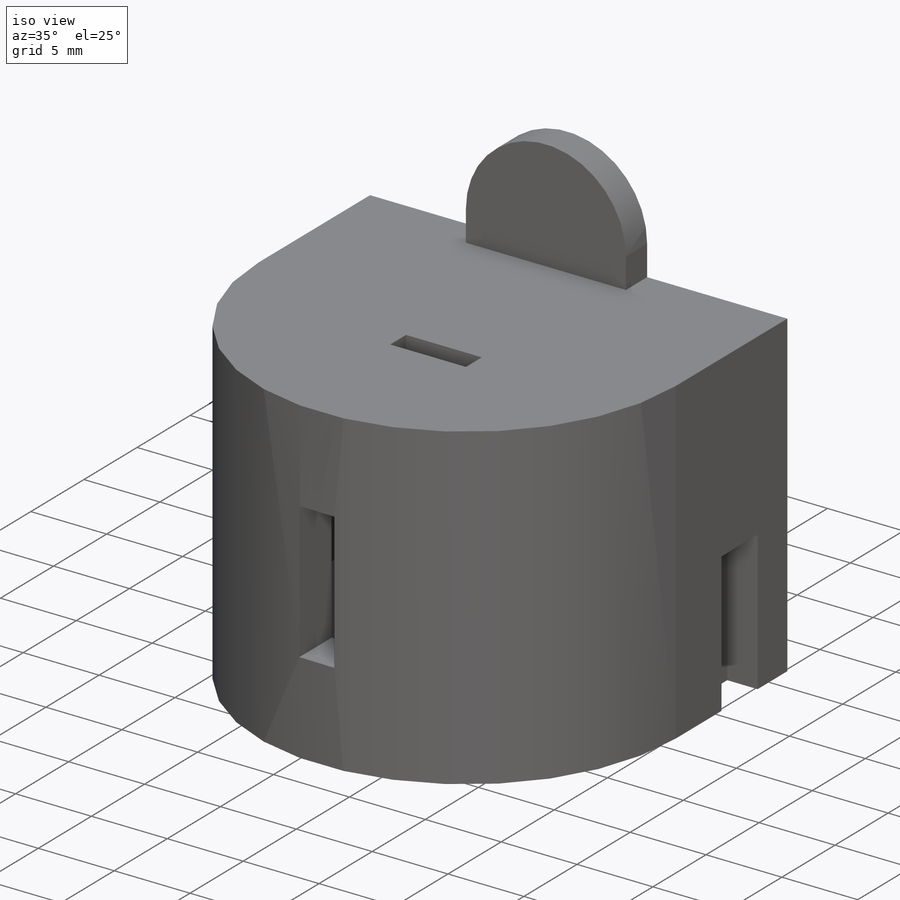
[diagram: iso view]
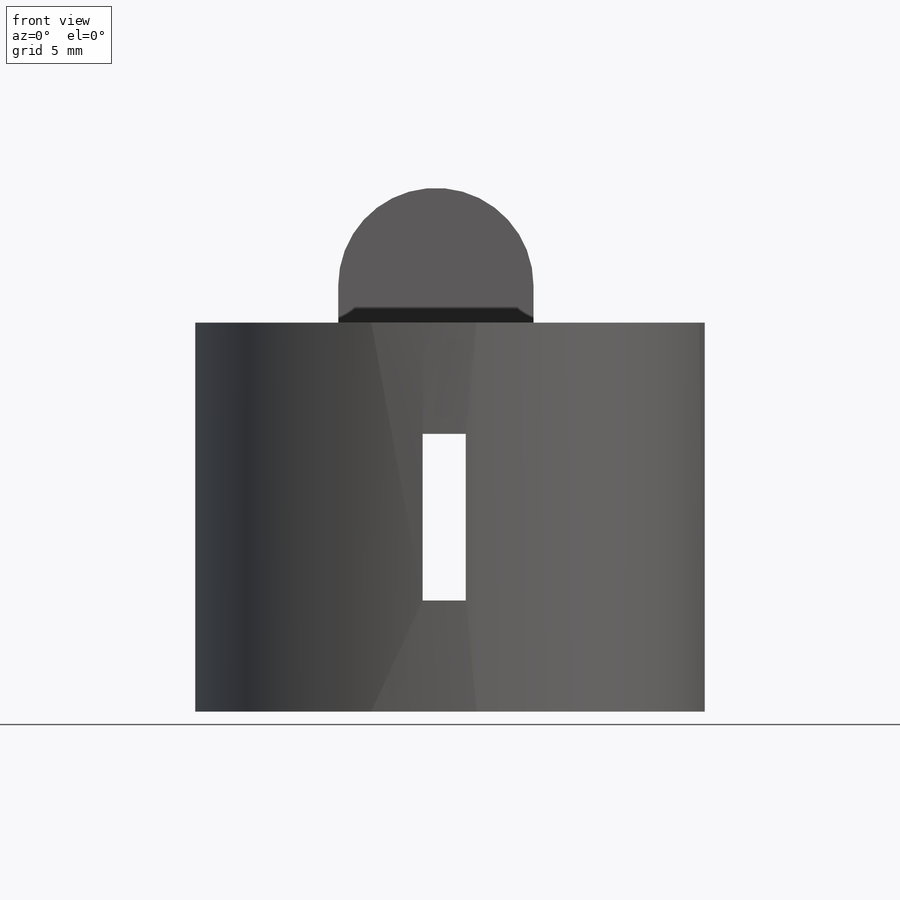
[diagram: front view]
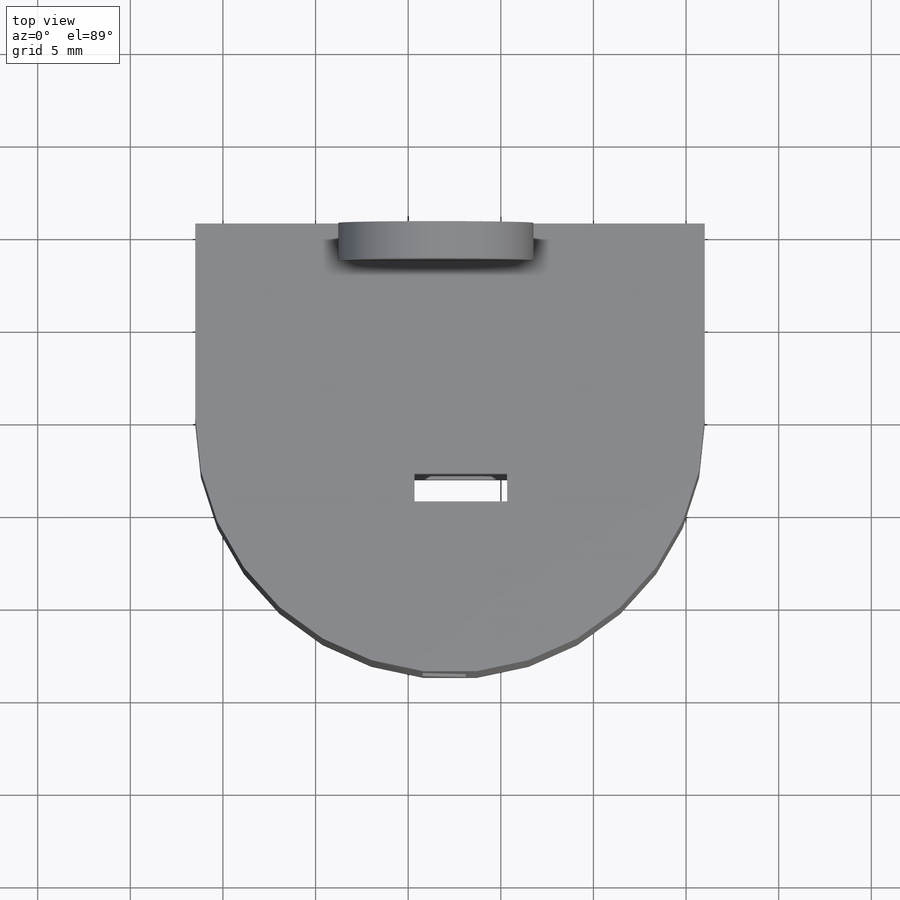
[diagram: top view]
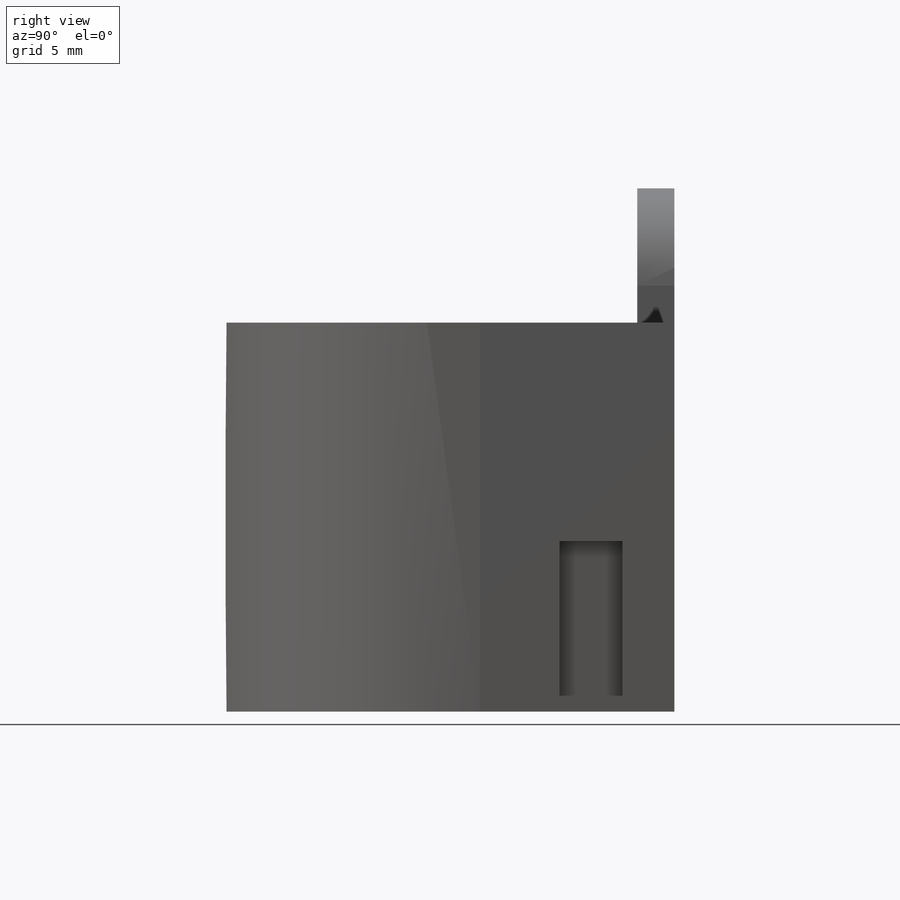
[diagram: right view]
SOLIDWORKS PART (.sldprt)
format: sldprt  version: not decoded by parser v0  size: 308,736 bytes
history: native  units: mm
features: sketch x7, cut_extrude x4, plane x3, extrude x2, material x1, revolve x1 (+10 scaffold rows collapsed)
feature tree (28):
  scaffold x10  (default folders/planes/origin — collapsed)
  material  "Материал <не указан>"
  plane  "Спереди"
  plane  "Сверху"
  plane  "Справа"
  sketch  "Эскиз1"  dims[c1.D1=~12.920711mm c1.D2=15.0mm c1.D3=13.75mm c2.D1=3.0mm]
  revolve  "Повернуть1"  Angle=180deg
  sketch  "Эскиз5"  dims[D1=~26.341421mm]
  extrude  "Бобышка-Вытянуть1"  Depth=10.5mm
  sketch  "Эскиз6"
  cut_extrude  "Вырез-Вытянуть1"  [1 undecoded]
  sketch  "Эскиз7"  dims[D1=1.5mm]
  cut_extrude  "Вырез-Вытянуть2"  [1 undecoded]
  sketch  "Эскиз9"  dims[D1=1.5mm]
  extrude  "Бобышка-Вытянуть2"  Depth=3.033499mm
  sketch  "Эскиз10"  dims[D1=0.2mm]
  cut_extrude  "Вырез-Вытянуть3"  Depth=2mm
  sketch  "Эскиз11"  dims[D1=0.2mm]
  cut_extrude  "Вырез-Вытянуть4"  Depth=2mm
decode coverage: 11 of 14 modeling features carry decoded parameters
note: ~ marks probable driven/reference dimensions
note: 2 parameter values undecoded
note: suppression state not decoded; provenance and decode notes live in map.json
